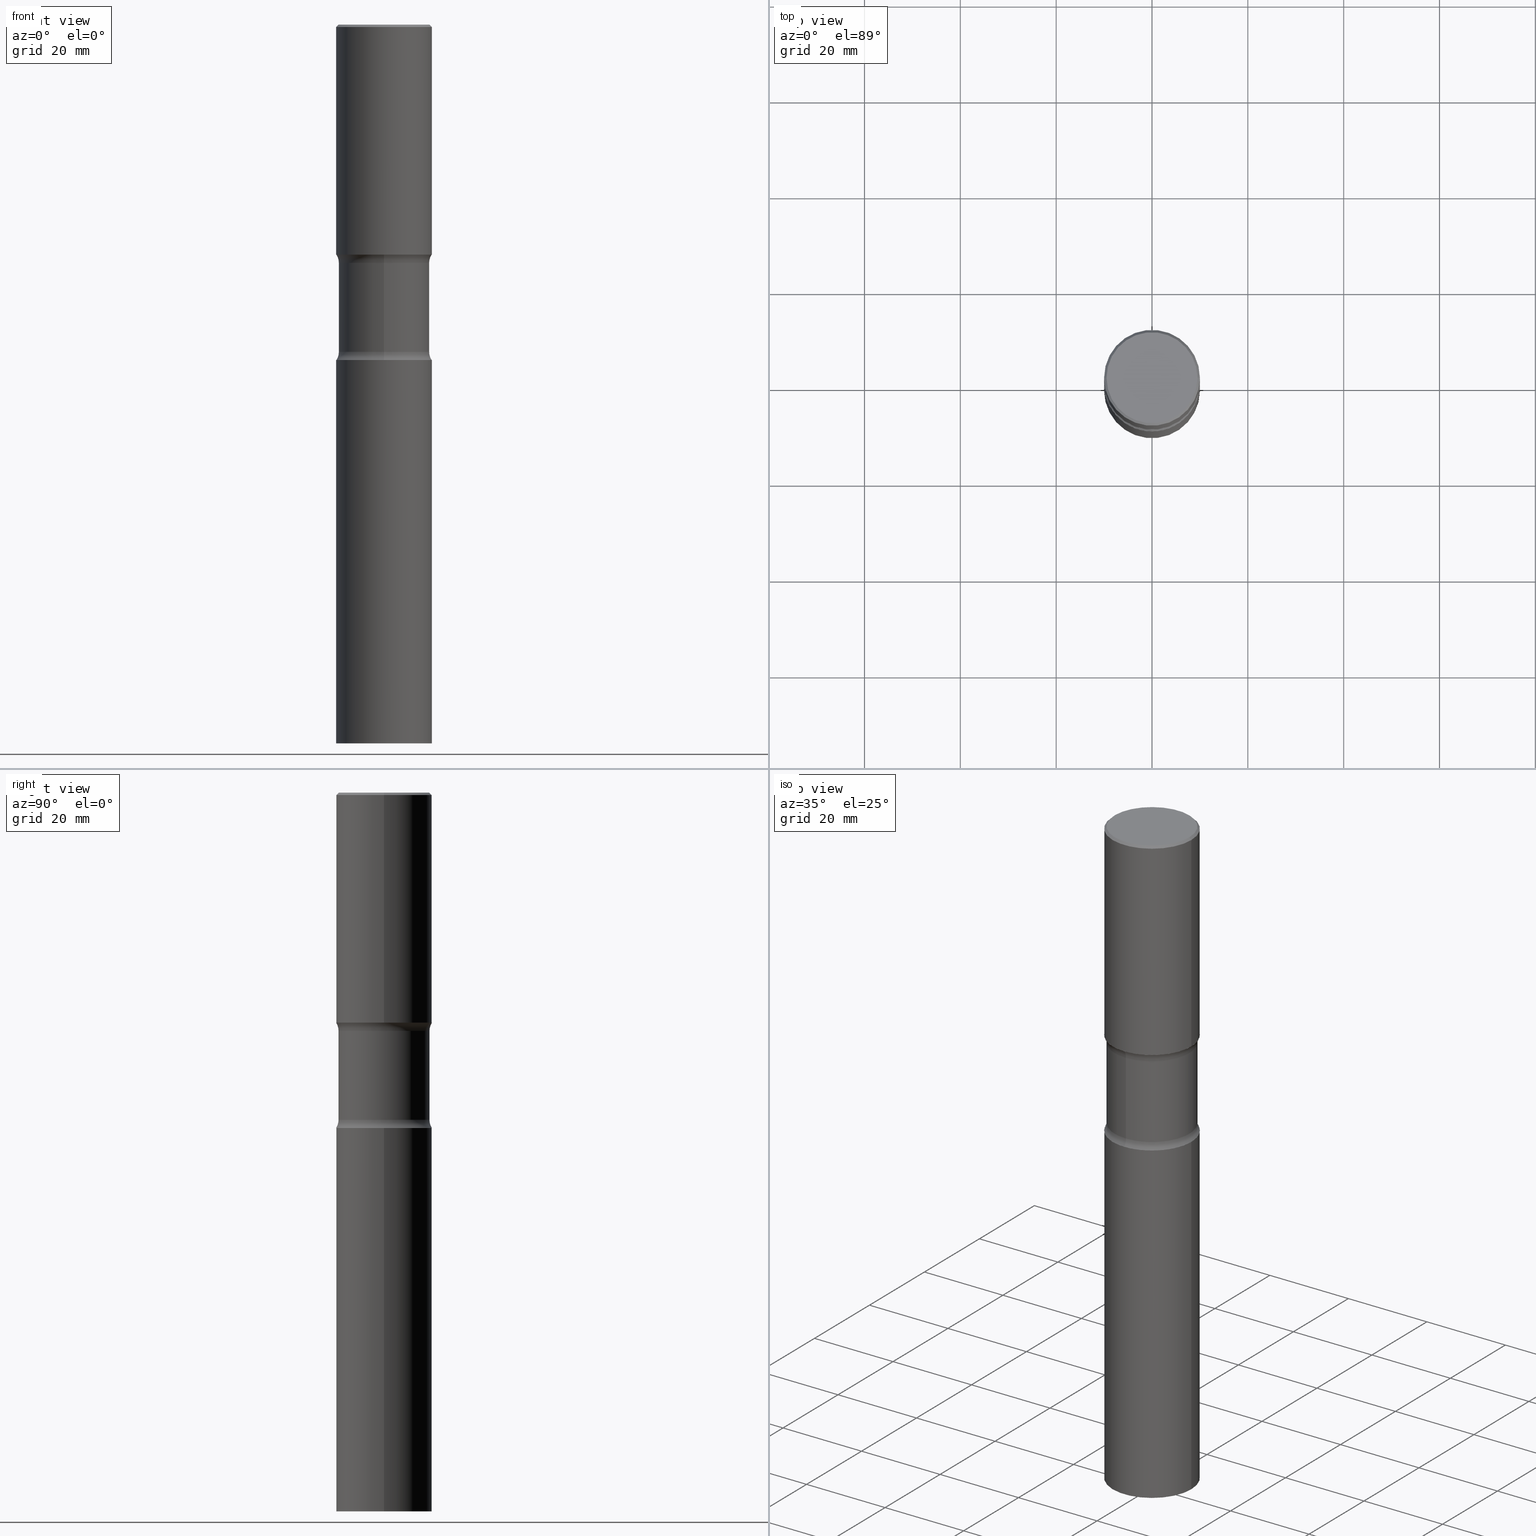
[diagram: canonical four-view strip — front | top / right | iso, engineering-drawing reading convention]
A machine part, canonical four-view strip (front | top / right | iso — engineering-drawing reading convention). The complete STEP part file that produces these views, byte-faithful:
ISO-10303-21;
HEADER;
FILE_DESCRIPTION (( 'STEP AP203' ),
    '1' );
FILE_NAME ('44637.STEP',
    '2024-03-11T13:38:57',
    ( '' ),
    ( '' ),
    'SwSTEP 2.0',
    'SolidWorks 2023',
    '' );
FILE_SCHEMA (( 'CONFIG_CONTROL_DESIGN' ));
ENDSEC;

DATA;
#1 = AXIS2_PLACEMENT_3D ( 'NONE', #354, #391, #389 ) ;
#2 = CYLINDRICAL_SURFACE ( 'NONE', #32, 0.3735000000000001097 ) ;
#3 = ORIENTED_EDGE ( 'NONE', *, *, #414, .F. ) ;
#4 = CARTESIAN_POINT ( 'NONE',  ( 2.608136560115867538E-15, 0.3734999999999931153, -1.957931930840099755 ) ) ;
#5 = ORIENTED_EDGE ( 'NONE', *, *, #360, .T. ) ;
#6 = FACE_OUTER_BOUND ( 'NONE', #463, .T. ) ;
#7 = TOROIDAL_SURFACE ( 'NONE', #404, 0.4984999999999999987, 0.1250000000000000000 ) ;
#8 = CIRCLE ( 'NONE', #274, 0.1249999999999999029 ) ;
#9 = PRODUCT ( '44637', '44637', '', ( #58 ) ) ;
#10 = DIRECTION ( 'NONE',  ( 2.490894556869833898E-29, -3.426429078389494425E-15, -1.000000000000000000 ) ) ;
#11 = APPLICATION_CONTEXT ( 'configuration controlled 3d designs of mechanical parts and assemblies' ) ;
#12 = DATE_AND_TIME ( #366, #208 ) ;
#13 = DIRECTION ( 'NONE',  ( 1.000000000000000000, -6.860497997771530774E-15, 4.841595540049562041E-29 ) ) ;
#14 = ADVANCED_FACE ( 'NONE', ( #152 ), #238, .T. ) ;
#15 = ORIENTED_EDGE ( 'NONE', *, *, #118, .F. ) ;
#16 = CARTESIAN_POINT ( 'NONE',  ( 0.3936999999999999389, -2.749192406205082822E-15, 1.919750796630859611E-29 ) ) ;
#17 = EDGE_LOOP ( 'NONE', ( #371, #189, #438, #336 ) ) ;
#18 = COORDINATED_UNIVERSAL_TIME_OFFSET ( 5, 0, .BEHIND. ) ;
#19 = CIRCLE ( 'NONE', #187, 0.3735000000000002207 ) ;
#20 = CARTESIAN_POINT ( 'NONE',  ( -2.700978061722584594E-15, -0.3937000000000096533, -2.755899999999997796 ) ) ;
#21 = ORIENTED_EDGE ( 'NONE', *, *, #471, .T. ) ;
#22 = ADVANCED_FACE ( 'NONE', ( #260 ), #388, .F. ) ;
#23 = ADVANCED_FACE ( 'NONE', ( #495 ), #7, .F. ) ;
#24 = ORIENTED_EDGE ( 'NONE', *, *, #436, .F. ) ;
#25 = PERSON_AND_ORGANIZATION ( #271, #163 ) ;
#26 = ORIENTED_EDGE ( 'NONE', *, *, #254, .F. ) ;
#27 = CARTESIAN_POINT ( 'NONE',  ( 6.739467482965615990E-29, -9.622173421717821235E-15, -2.755899999999998684 ) ) ;
#28 = EDGE_CURVE ( 'NONE', #319, #279, #293, .T. ) ;
#29 = DIMENSIONAL_EXPONENTS ( 1.000000000000000000, 0.000000000000000000, 0.000000000000000000, 0.000000000000000000, 0.000000000000000000, 0.000000000000000000, 0.000000000000000000 ) ;
#30 = APPROVAL ( #71, 'UNSPECIFIED' ) ;
#31 = EDGE_CURVE ( 'NONE', #343, #201, #218, .T. ) ;
#32 = AXIS2_PLACEMENT_3D ( 'NONE', #395, #255, #470 ) ;
#33 = DIRECTION ( 'NONE',  ( -2.438088387897960049E-29, 3.491481338843145188E-15, 1.000000000000000000 ) ) ;
#34 = CC_DESIGN_APPROVAL ( #267, ( #483 ) ) ;
#35 = DIRECTION ( 'NONE',  ( 6.982962677686265922E-15, 1.000000000000000000, -3.426429078389494425E-15 ) ) ;
#36 = ORIENTED_EDGE ( 'NONE', *, *, #230, .F. ) ;
#37 = DIRECTION ( 'NONE',  ( 6.982962677686265133E-15, 1.000000000000000000, -3.469453890861395179E-15 ) ) ;
#38 = CYLINDRICAL_SURFACE ( 'NONE', #53, 0.3936999999999999389 ) ;
#39 = CONICAL_SURFACE ( 'NONE', #419, 0.3936999999999998834, 0.7853981633974473908 ) ;
#40 = AXIS2_PLACEMENT_3D ( 'NONE', #297, #10, #92 ) ;
#41 = VECTOR ( 'NONE', #103, 39.37007874015748143 ) ;
#42 = DIRECTION ( 'NONE',  ( 6.982962677686264344E-15, 1.000000000000000000, -2.925673888797067346E-15 ) ) ;
#43 = APPLICATION_CONTEXT ( 'configuration controlled 3d designs of mechanical parts and assemblies' ) ;
#44 = DIRECTION ( 'NONE',  ( -2.445468806185136597E-29, 3.491481338843145583E-15, 1.000000000000000000 ) ) ;
#45 = EDGE_LOOP ( 'NONE', ( #172, #275, #5, #429 ) ) ;
#46 = CARTESIAN_POINT ( 'NONE',  ( 4.890937612370294178E-31, -6.982962677686321191E-17, -0.02000000000000008715 ) ) ;
#47 = CIRCLE ( 'NONE', #1, 0.3937000000000000499 ) ;
#48 = CARTESIAN_POINT ( 'NONE',  ( -2.087702828670439639E-46, 2.980686340760894400E-32, 8.537024980200822558E-18 ) ) ;
#49 = EDGE_CURVE ( 'NONE', #264, #479, #98, .T. ) ;
#50 = DIRECTION ( 'NONE',  ( -2.445468806185136597E-29, 3.491481338843145583E-15, 1.000000000000000000 ) ) ;
#51 = VERTEX_POINT ( 'NONE', #94 ) ;
#52 =( LENGTH_UNIT ( ) NAMED_UNIT ( * ) SI_UNIT ( $, .METRE. ) );
#53 = AXIS2_PLACEMENT_3D ( 'NONE', #116, #190, #160 ) ;
#54 = DATE_TIME_ROLE ( 'classification_date' ) ;
#55 = AXIS2_PLACEMENT_3D ( 'NONE', #334, #56, #139 ) ;
#56 = DIRECTION ( 'NONE',  ( -2.445468806185136597E-29, 3.491481338843145583E-15, 1.000000000000000000 ) ) ;
#57 = EDGE_CURVE ( 'NONE', #264, #381, #330, .T. ) ;
#58 = MECHANICAL_CONTEXT ( 'NONE', #11, 'mechanical' ) ;
#59 = DIRECTION ( 'NONE',  ( -2.490894556869833617E-29, 3.426429078389494425E-15, 1.000000000000000000 ) ) ;
#60 = VERTEX_POINT ( 'NONE', #20 ) ;
#61 = DATE_AND_TIME ( #368, #66 ) ;
#62 = EDGE_LOOP ( 'NONE', ( #90, #148 ) ) ;
#63 = DIRECTION ( 'NONE',  ( 2.490894556869833898E-29, -3.426429078389494425E-15, -1.000000000000000000 ) ) ;
#64 = PERSON_AND_ORGANIZATION_ROLE ( 'design_owner' ) ;
#65 = AXIS2_PLACEMENT_3D ( 'NONE', #106, #137, #278 ) ;
#66 = LOCAL_TIME ( 9, 38, 57.00000000000000000, #451 ) ;
#67 = ORIENTED_EDGE ( 'NONE', *, *, #462, .T. ) ;
#68 = DIRECTION ( 'NONE',  ( -6.982962677686265922E-15, -1.000000000000000000, 3.426429078389494425E-15 ) ) ;
#69 = EDGE_LOOP ( 'NONE', ( #266, #312 ) ) ;
#70 = ORIENTED_EDGE ( 'NONE', *, *, #340, .F. ) ;
#71 = APPROVAL_STATUS ( 'not_yet_approved' ) ;
#72 = DIRECTION ( 'NONE',  ( 2.438088387897960049E-29, -3.491481338843145188E-15, -1.000000000000000000 ) ) ;
#73 = AXIS2_PLACEMENT_3D ( 'NONE', #110, #149, #199 ) ;
#74 = CYLINDRICAL_SURFACE ( 'NONE', #306, 0.3937000000000000499 ) ;
#75 = VERTEX_POINT ( 'NONE', #453 ) ;
#76 = DIRECTION ( 'NONE',  ( 2.490894556869833898E-29, -3.426429078389494425E-15, -1.000000000000000000 ) ) ;
#77 = PLANE ( 'NONE',  #244 ) ;
#78 = DIRECTION ( 'NONE',  ( 1.000000000000000000, -6.860497997771530774E-15, 4.841595540049562041E-29 ) ) ;
#79 = AXIS2_PLACEMENT_3D ( 'NONE', #367, #59, #68 ) ;
#80 = TOROIDAL_SURFACE ( 'NONE', #364, 0.4984999999999999432, 0.1249999999999998612 ) ;
#81 = APPROVAL_PERSON_ORGANIZATION ( #276, #30, #228 ) ;
#82 = DIRECTION ( 'NONE',  ( -2.445468806185136597E-29, 3.491481338843145583E-15, 1.000000000000000000 ) ) ;
#83 = ADVANCED_FACE ( 'NONE', ( #446 ), #39, .T. ) ;
#84 = CARTESIAN_POINT ( 'NONE',  ( 0.3936999999999998834, -2.770807688499514550E-15, -0.02000000000000008715 ) ) ;
#85 = DIRECTION ( 'NONE',  ( 2.490894556869833898E-29, -3.426429078389494425E-15, -1.000000000000000000 ) ) ;
#86 = AXIS2_PLACEMENT_3D ( 'NONE', #285, #322, #120 ) ;
#87 = ORIENTED_EDGE ( 'NONE', *, *, #157, .T. ) ;
#88 = APPROVAL_PERSON_ORGANIZATION ( #269, #267, #372 ) ;
#89 = DIRECTION ( 'NONE',  ( -2.445468806185136877E-29, 3.491481338843145188E-15, 1.000000000000000000 ) ) ;
#90 = ORIENTED_EDGE ( 'NONE', *, *, #340, .T. ) ;
#91 = CC_DESIGN_PERSON_AND_ORGANIZATION_ASSIGNMENT ( #456, #407, ( #129 ) ) ;
#92 = DIRECTION ( 'NONE',  ( 6.982962677686265133E-15, 1.000000000000000000, -2.775563112689116301E-15 ) ) ;
#93 = APPLICATION_PROTOCOL_DEFINITION ( 'international standard', 'config_control_design', 1994, #43 ) ;
#94 = CARTESIAN_POINT ( 'NONE',  ( 2.749192406205129365E-15, 0.3936999999999933886, -1.889800000000001035 ) ) ;
#95 = DIRECTION ( 'NONE',  ( 6.982962677686265922E-15, 1.000000000000000000, -2.925673888797068135E-15 ) ) ;
#96 = CIRCLE ( 'NONE', #154, 0.3937000000000001054 ) ;
#97 = CC_DESIGN_SECURITY_CLASSIFICATION ( #129, ( #483 ) ) ;
#98 = LINE ( 'NONE', #223, #315 ) ;
#99 = DATE_AND_TIME ( #496, #198 ) ;
#100 = DIRECTION ( 'NONE',  ( 1.000000000000000000, -6.982962677686267499E-15, 0.000000000000000000 ) ) ;
#101 = APPLICATION_PROTOCOL_DEFINITION ( 'international standard', 'config_control_design', 1994, #11 ) ;
#102 = ORIENTED_EDGE ( 'NONE', *, *, #436, .T. ) ;
#103 = DIRECTION ( 'NONE',  ( -2.445468806185136877E-29, 3.491481338843145188E-15, 1.000000000000000000 ) ) ;
#104 = ORIENTED_EDGE ( 'NONE', *, *, #476, .F. ) ;
#105 =( CONVERSION_BASED_UNIT ( 'INCH', #213 ) LENGTH_UNIT ( ) NAMED_UNIT ( #29 ) );
#106 = CARTESIAN_POINT ( 'NONE',  ( 4.621446949928670868E-29, -6.598201434145776001E-15, -1.889799999999999924 ) ) ;
#107 = FACE_OUTER_BOUND ( 'NONE', #165, .T. ) ;
#108 = EDGE_CURVE ( 'NONE', #268, #465, #171, .T. ) ;
#109 = ORIENTED_EDGE ( 'NONE', *, *, #455, .T. ) ;
#110 = CARTESIAN_POINT ( 'NONE',  ( 5.537133175464039442E-29, -5.286886641555802542E-15, -1.889799999999999702 ) ) ;
#111 = EDGE_CURVE ( 'NONE', #140, #195, #211, .T. ) ;
#112 = CC_DESIGN_PERSON_AND_ORGANIZATION_ASSIGNMENT ( #489, #307, ( #241 ) ) ;
#113 = AXIS2_PLACEMENT_3D ( 'NONE', #475, #295, #124 ) ;
#114 = CARTESIAN_POINT ( 'NONE',  ( 1.458478897928284484E-28, -2.041405444701337464E-14, -5.905499999999999972 ) ) ;
#115 = CIRCLE ( 'NONE', #220, 0.3936999999999998834 ) ;
#116 = CARTESIAN_POINT ( 'NONE',  ( 0.000000000000000000, 0.000000000000000000, 0.000000000000000000 ) ) ;
#117 = EDGE_LOOP ( 'NONE', ( #424, #308, #415, #207 ) ) ;
#118 = EDGE_CURVE ( 'NONE', #396, #268, #490, .T. ) ;
#119 = EDGE_CURVE ( 'NONE', #264, #222, #144, .T. ) ;
#120 = DIRECTION ( 'NONE',  ( -6.982962677686269077E-15, -1.000000000000000000, 0.000000000000000000 ) ) ;
#121 = ORIENTED_EDGE ( 'NONE', *, *, #290, .T. ) ;
#122 = DIRECTION ( 'NONE',  ( -2.445468806185136597E-29, 3.491481338843145583E-15, 1.000000000000000000 ) ) ;
#123 = ADVANCED_FACE ( 'NONE', ( #416 ), #411, .F. ) ;
#124 = DIRECTION ( 'NONE',  ( 1.000000000000000000, -6.982962677686267499E-15, 0.000000000000000000 ) ) ;
#125 = CARTESIAN_POINT ( 'NONE',  ( 1.444171603492632270E-28, -2.061894304653819197E-14, -5.905499999999999972 ) ) ;
#126 = CARTESIAN_POINT ( 'NONE',  ( 4.890937612370294178E-31, -6.982962677686321191E-17, -0.02000000000000008715 ) ) ;
#127 = AXIS2_PLACEMENT_3D ( 'NONE', #433, #294, #164 ) ;
#128 = ORIENTED_EDGE ( 'NONE', *, *, #49, .F. ) ;
#129 = SECURITY_CLASSIFICATION ( '', '', #313 ) ;
#130 = CYLINDRICAL_SURFACE ( 'NONE', #188, 0.3936999999999999389 ) ;
#131 = COORDINATED_UNIVERSAL_TIME_OFFSET ( 5, 0, .BEHIND. ) ;
#132 = CARTESIAN_POINT ( 'NONE',  ( 0.3936999999999998834, -2.770807688499514550E-15, -0.02000000000000008715 ) ) ;
#133 = EDGE_CURVE ( 'NONE', #381, #264, #504, .T. ) ;
#134 = DIRECTION ( 'NONE',  ( 2.490894556869833898E-29, -3.426429078389494425E-15, -1.000000000000000000 ) ) ;
#135 = CIRCLE ( 'NONE', #127, 0.1249999999999999029 ) ;
#136 = ORIENTED_EDGE ( 'NONE', *, *, #133, .F. ) ;
#137 = DIRECTION ( 'NONE',  ( -2.445468806185136597E-29, 3.491481338843145583E-15, 1.000000000000000000 ) ) ;
#138 = DIRECTION ( 'NONE',  ( 1.000000000000000000, 0.000000000000000000, 0.000000000000000000 ) ) ;
#139 = DIRECTION ( 'NONE',  ( 1.000000000000000000, -6.982962677686266711E-15, 4.876212485538977921E-29 ) ) ;
#140 = VERTEX_POINT ( 'NONE', #383 ) ;
#141 = CARTESIAN_POINT ( 'NONE',  ( 0.000000000000000000, 0.000000000000000000, 0.000000000000000000 ) ) ;
#142 = CARTESIAN_POINT ( 'NONE',  ( 4.890937612370294178E-31, -6.982962677686321191E-17, -0.02000000000000008715 ) ) ;
#143 = CC_DESIGN_DATE_AND_TIME_ASSIGNMENT ( #183, #54, ( #129 ) ) ;
#144 = CIRCLE ( 'NONE', #243, 0.1249999999999999584 ) ;
#145 = AXIS2_PLACEMENT_3D ( 'NONE', #501, #428, #245 ) ;
#146 = LINE ( 'NONE', #317, #335 ) ;
#147 = AXIS2_PLACEMENT_3D ( 'NONE', #240, #385, #373 ) ;
#148 = ORIENTED_EDGE ( 'NONE', *, *, #476, .T. ) ;
#149 = DIRECTION ( 'NONE',  ( 2.490894556869833617E-29, -3.426429078389494425E-15, -1.000000000000000000 ) ) ;
#150 = ORIENTED_EDGE ( 'NONE', *, *, #397, .F. ) ;
#151 = CARTESIAN_POINT ( 'NONE',  ( 2.608136560115886865E-15, 0.3734999999999908393, -2.687768069159901074 ) ) ;
#152 = FACE_OUTER_BOUND ( 'NONE', #486, .T. ) ;
#153 = ORIENTED_EDGE ( 'NONE', *, *, #108, .F. ) ;
#154 = AXIS2_PLACEMENT_3D ( 'NONE', #321, #288, #37 ) ;
#155 = CARTESIAN_POINT ( 'NONE',  ( 6.739467482965615990E-29, -9.622173421717821235E-15, -2.755899999999998684 ) ) ;
#156 = AXIS2_PLACEMENT_3D ( 'NONE', #184, #175, #344 ) ;
#157 = EDGE_CURVE ( 'NONE', #201, #195, #115, .T. ) ;
#158 = CC_DESIGN_PERSON_AND_ORGANIZATION_ASSIGNMENT ( #310, #64, ( #9 ) ) ;
#159 = DIRECTION ( 'NONE',  ( 1.000000000000000000, -6.982962677686265922E-15, 4.876176775795935793E-29 ) ) ;
#160 = DIRECTION ( 'NONE',  ( 1.000000000000000000, -6.982962677686266711E-15, 4.876176775795935793E-29 ) ) ;
#161 = CARTESIAN_POINT ( 'NONE',  ( 4.740370480051120811E-29, -6.904378999094938868E-15, -1.957931930840098422 ) ) ;
#162 = AXIS2_PLACEMENT_3D ( 'NONE', #48, #122, #292 ) ;
#163 = ORGANIZATION ( 'UNSPECIFIED', 'UNSPECIFIED', '' ) ;
#164 = DIRECTION ( 'NONE',  ( -6.982962677686264344E-15, -1.000000000000000000, 0.000000000000000000 ) ) ;
#165 = EDGE_LOOP ( 'NONE', ( #109, #224, #150, #300 ) ) ;
#166 = EDGE_CURVE ( 'NONE', #140, #343, #298, .T. ) ;
#167 = ADVANCED_FACE ( 'NONE', ( #421 ), #80, .F. ) ;
#168 = FACE_OUTER_BOUND ( 'NONE', #117, .T. ) ;
#169 = CC_DESIGN_PERSON_AND_ORGANIZATION_ASSIGNMENT ( #301, #337, ( #483 ) ) ;
#170 = DIRECTION ( 'NONE',  ( 0.7071067811865469066, -7.319954787623254468E-15, -0.7071067811865481278 ) ) ;
#171 = CIRCLE ( 'NONE', #457, 0.3937000000000000499 ) ;
#172 = ORIENTED_EDGE ( 'NONE', *, *, #57, .F. ) ;
#173 = APPROVAL_STATUS ( 'not_yet_approved' ) ;
#174 = SHAPE_DEFINITION_REPRESENTATION ( #488, #250 ) ;
#175 = DIRECTION ( 'NONE',  ( 2.490894556869833898E-29, -3.426429078389494425E-15, -1.000000000000000000 ) ) ;
#176 = APPROVAL_STATUS ( 'not_yet_approved' ) ;
#177 = LINE ( 'NONE', #431, #316 ) ;
#178 = ORIENTED_EDGE ( 'NONE', *, *, #462, .F. ) ;
#179 = APPROVAL_DATE_TIME ( #378, #267 ) ;
#180 = DIRECTION ( 'NONE',  ( -2.445468806185136597E-29, 3.491481338843145583E-15, 1.000000000000000000 ) ) ;
#181 = VERTEX_POINT ( 'NONE', #498 ) ;
#182 = ORIENTED_EDGE ( 'NONE', *, *, #209, .T. ) ;
#183 = DATE_AND_TIME ( #444, #325 ) ;
#184 = CARTESIAN_POINT ( 'NONE',  ( 4.751813162939288428E-29, -6.887992425922019531E-15, -1.957931930840098422 ) ) ;
#185 = CARTESIAN_POINT ( 'NONE',  ( 6.572852971390990694E-29, -9.384292056610263617E-15, -2.687768069159900186 ) ) ;
#186 = EDGE_CURVE ( 'NONE', #381, #286, #146, .T. ) ;
#187 = AXIS2_PLACEMENT_3D ( 'NONE', #200, #85, #328 ) ;
#188 = AXIS2_PLACEMENT_3D ( 'NONE', #327, #44, #405 ) ;
#189 = ORIENTED_EDGE ( 'NONE', *, *, #49, .T. ) ;
#190 = DIRECTION ( 'NONE',  ( -2.445468806185136597E-29, 3.491481338843145583E-15, 1.000000000000000000 ) ) ;
#191 = EDGE_LOOP ( 'NONE', ( #358, #270 ) ) ;
#192 = PLANE ( 'NONE',  #145 ) ;
#193 = ORIENTED_EDGE ( 'NONE', *, *, #209, .F. ) ;
#194 = DIRECTION ( 'NONE',  ( -1.000000000000000000, 6.982962677686265922E-15, -4.876176775795935793E-29 ) ) ;
#195 = VERTEX_POINT ( 'NONE', #132 ) ;
#196 = CIRCLE ( 'NONE', #259, 0.3735000000000002207 ) ;
#197 = CARTESIAN_POINT ( 'NONE',  ( 6.572852971390990694E-29, -9.384292056610263617E-15, -2.687768069159900186 ) ) ;
#198 = LOCAL_TIME ( 9, 38, 57.00000000000000000, #382 ) ;
#199 = DIRECTION ( 'NONE',  ( 6.982962677686265922E-15, 1.000000000000000000, -3.426429078389494425E-15 ) ) ;
#200 = CARTESIAN_POINT ( 'NONE',  ( 6.569758027286980545E-29, -9.388724192720483938E-15, -2.687768069159900186 ) ) ;
#201 = VERTEX_POINT ( 'NONE', #370 ) ;
#202 = CARTESIAN_POINT ( 'NONE',  ( 4.582103707260653543E-29, -6.654543196924682234E-15, -1.889799999999999702 ) ) ;
#203 = AXIS2_PLACEMENT_3D ( 'NONE', #161, #480, #357 ) ;
#204 = LINE ( 'NONE', #439, #503 ) ;
#205 = DIRECTION ( 'NONE',  ( 2.490894556869833898E-29, -3.426429078389494425E-15, -1.000000000000000000 ) ) ;
#206 = ORIENTED_EDGE ( 'NONE', *, *, #247, .F. ) ;
#207 = ORIENTED_EDGE ( 'NONE', *, *, #111, .F. ) ;
#208 = LOCAL_TIME ( 9, 38, 57.00000000000000000, #210 ) ;
#209 = EDGE_CURVE ( 'NONE', #319, #201, #177, .T. ) ;
#210 = COORDINATED_UNIVERSAL_TIME_OFFSET ( 5, 0, .BEHIND. ) ;
#211 = LINE ( 'NONE', #16, #41 ) ;
#212 = ADVANCED_FACE ( 'NONE', ( #291 ), #500, .F. ) ;
#213 = LENGTH_MEASURE_WITH_UNIT ( LENGTH_MEASURE( 0.02539999999999999897 ), #52 );
#214 = EDGE_LOOP ( 'NONE', ( #231, #426 ) ) ;
#215 = DIRECTION ( 'NONE',  ( 2.490894556869833898E-29, -3.426429078389494425E-15, -1.000000000000000000 ) ) ;
#216 = ORIENTED_EDGE ( 'NONE', *, *, #447, .T. ) ;
#217 = ORIENTED_EDGE ( 'NONE', *, *, #254, .T. ) ;
#218 = LINE ( 'NONE', #311, #347 ) ;
#219 = CIRCLE ( 'NONE', #40, 0.3937000000000000499 ) ;
#220 = AXIS2_PLACEMENT_3D ( 'NONE', #142, #314, #458 ) ;
#221 = DATE_TIME_ROLE ( 'creation_date' ) ;
#222 = VERTEX_POINT ( 'NONE', #502 ) ;
#223 = CARTESIAN_POINT ( 'NONE',  ( -2.562396002167521472E-15, -0.3735000000000205378, -5.905499999999998195 ) ) ;
#224 = ORIENTED_EDGE ( 'NONE', *, *, #118, .T. ) ;
#225 = ADVANCED_FACE ( 'NONE', ( #384 ), #77, .F. ) ;
#226 = ORIENTED_EDGE ( 'NONE', *, *, #365, .F. ) ;
#227 = ORIENTED_EDGE ( 'NONE', *, *, #230, .T. ) ;
#228 = APPROVAL_ROLE ( '' ) ;
#229 = DIRECTION ( 'NONE',  ( -1.000000000000000000, 6.982962677686266711E-15, 0.000000000000000000 ) ) ;
#230 = EDGE_CURVE ( 'NONE', #51, #222, #96, .T. ) ;
#231 = ORIENTED_EDGE ( 'NONE', *, *, #455, .F. ) ;
#232 = CARTESIAN_POINT ( 'NONE',  ( 6.739467482965615990E-29, -9.622173421717821235E-15, -2.755899999999998684 ) ) ;
#233 = AXIS2_PLACEMENT_3D ( 'NONE', #155, #72, #194 ) ;
#234 = CYLINDRICAL_SURFACE ( 'NONE', #472, 0.3937000000000000499 ) ;
#235 = MANIFOLD_SOLID_BREP ( 'Body-Move/Copy2[4]', #273 ) ;
#236 = ADVANCED_FACE ( 'NONE', ( #351 ), #318, .F. ) ;
#237 = DIRECTION ( 'NONE',  ( 1.000000000000000000, -6.982962677686265922E-15, 4.876176775795935793E-29 ) ) ;
#238 = CYLINDRICAL_SURFACE ( 'NONE', #331, 0.3735000000000001097 ) ;
#239 = MANIFOLD_SOLID_BREP ( 'Body-Move/Copy2[2]', #246 ) ;
#240 = CARTESIAN_POINT ( 'NONE',  ( 2.609533152651356226E-15, 0.3736999999999998101, -1.300498063835582617E-15 ) ) ;
#241 = PRODUCT_DEFINITION ( 'UNKNOWN', '', #483, #302 ) ;
#242 = DIRECTION ( 'NONE',  ( 1.000000000000000000, -6.982962677686265922E-15, 4.876176775795935793E-29 ) ) ;
#243 = AXIS2_PLACEMENT_3D ( 'NONE', #338, #13, #380 ) ;
#244 = AXIS2_PLACEMENT_3D ( 'NONE', #468, #33, #242 ) ;
#245 = DIRECTION ( 'NONE',  ( -1.000000000000000000, 6.982962677686265922E-15, -4.876176775795935793E-29 ) ) ;
#246 = CLOSED_SHELL ( 'NONE', ( #422, #481, #83, #22, #225, #261 ) ) ;
#247 = EDGE_CURVE ( 'NONE', #60, #479, #8, .T. ) ;
#248 = CARTESIAN_POINT ( 'NONE',  ( -0.3937000000000000499, -5.366087797738052578E-16, -1.889799999999999924 ) ) ;
#249 = DIRECTION ( 'NONE',  ( 1.000000000000000000, -6.982962677686267499E-15, 0.000000000000000000 ) ) ;
#250 = ADVANCED_BREP_SHAPE_REPRESENTATION ( '44637', ( #398, #239, #235, #459 ), #392 ) ;
#251 = DIRECTION ( 'NONE',  ( 2.445468806185136597E-29, -3.491481338843145583E-15, -1.000000000000000000 ) ) ;
#252 = CIRCLE ( 'NONE', #499, 0.3937000000000000499 ) ;
#253 = EDGE_LOOP ( 'NONE', ( #477, #26 ) ) ;
#254 = EDGE_CURVE ( 'NONE', #343, #140, #47, .T. ) ;
#255 = DIRECTION ( 'NONE',  ( 2.490894556869833898E-29, -3.426429078389494425E-15, -1.000000000000000000 ) ) ;
#256 = ORIENTED_EDGE ( 'NONE', *, *, #157, .F. ) ;
#257 = PERSON_AND_ORGANIZATION ( #271, #163 ) ;
#258 = DIRECTION ( 'NONE',  ( 2.490894556869833898E-29, -3.426429078389494425E-15, -1.000000000000000000 ) ) ;
#259 = AXIS2_PLACEMENT_3D ( 'NONE', #394, #76, #42 ) ;
#260 = FACE_OUTER_BOUND ( 'NONE', #69, .T. ) ;
#261 = ADVANCED_FACE ( 'NONE', ( #282 ), #38, .T. ) ;
#262 = APPROVAL_DATE_TIME ( #12, #30 ) ;
#263 = DIRECTION ( 'NONE',  ( 2.445468806185136597E-29, -3.491481338843145583E-15, -1.000000000000000000 ) ) ;
#264 = VERTEX_POINT ( 'NONE', #506 ) ;
#265 = CARTESIAN_POINT ( 'NONE',  ( 4.751813162939288428E-29, -6.887992425922019531E-15, -1.957931930840098422 ) ) ;
#266 = ORIENTED_EDGE ( 'NONE', *, *, #28, .T. ) ;
#267 = APPROVAL ( #173, 'UNSPECIFIED' ) ;
#268 = VERTEX_POINT ( 'NONE', #349 ) ;
#269 = PERSON_AND_ORGANIZATION ( #271, #163 ) ;
#270 = ORIENTED_EDGE ( 'NONE', *, *, #108, .T. ) ;
#271 = PERSON ( 'UNSPECIFIED', 'UNSPECIFIED', 'UNSPECIFIED', ('UNSPECIFIED'), ('UNSPECIFIED'), ('UNSPECIFIED') ) ;
#272 = CARTESIAN_POINT ( 'NONE',  ( -0.3937000000000000499, 2.797406750687514786E-15, -1.936584745033356735E-29 ) ) ;
#273 = CLOSED_SHELL ( 'NONE', ( #348, #167, #23, #434, #212, #123, #281, #14 ) ) ;
#274 = AXIS2_PLACEMENT_3D ( 'NONE', #464, #78, #423 ) ;
#275 = ORIENTED_EDGE ( 'NONE', *, *, #119, .T. ) ;
#276 = PERSON_AND_ORGANIZATION ( #271, #163 ) ;
#277 = ORIENTED_EDGE ( 'NONE', *, *, #28, .F. ) ;
#278 = DIRECTION ( 'NONE',  ( 1.000000000000000000, -6.982962677686265133E-15, 0.000000000000000000 ) ) ;
#279 = VERTEX_POINT ( 'NONE', #469 ) ;
#280 = DIRECTION ( 'NONE',  ( -0.7071067811865469066, 2.468850131082250355E-15, -0.7071067811865481278 ) ) ;
#281 = ADVANCED_FACE ( 'NONE', ( #425 ), #408, .F. ) ;
#282 = FACE_OUTER_BOUND ( 'NONE', #454, .T. ) ;
#283 = ADVANCED_FACE ( 'NONE', ( #350 ), #192, .T. ) ;
#284 = CIRCLE ( 'NONE', #113, 0.3937000000000000499 ) ;
#285 = CARTESIAN_POINT ( 'NONE',  ( 3.481006894826651271E-15, 0.4984999999999931153, -1.957931930840099977 ) ) ;
#286 = VERTEX_POINT ( 'NONE', #151 ) ;
#287 = ADVANCED_FACE ( 'NONE', ( #320 ), #74, .T. ) ;
#288 = DIRECTION ( 'NONE',  ( 2.490894556869833898E-29, -3.426429078389494425E-15, -1.000000000000000000 ) ) ;
#289 = CC_DESIGN_PERSON_AND_ORGANIZATION_ASSIGNMENT ( #25, #442, ( #483 ) ) ;
#290 = EDGE_CURVE ( 'NONE', #381, #51, #432, .T. ) ;
#291 = FACE_OUTER_BOUND ( 'NONE', #369, .T. ) ;
#292 = DIRECTION ( 'NONE',  ( 1.000000000000000000, -6.982962677686266711E-15, 4.876212485538977921E-29 ) ) ;
#293 = CIRCLE ( 'NONE', #55, 0.3736999999999998101 ) ;
#294 = DIRECTION ( 'NONE',  ( -1.000000000000000000, 6.982962677686265922E-15, -4.883557194083112340E-29 ) ) ;
#295 = DIRECTION ( 'NONE',  ( -2.445468806185136597E-29, 3.491481338843145583E-15, 1.000000000000000000 ) ) ;
#296 = EDGE_CURVE ( 'NONE', #286, #479, #196, .T. ) ;
#297 = CARTESIAN_POINT ( 'NONE',  ( 6.739467482965615990E-29, -9.622173421717821235E-15, -2.755899999999998684 ) ) ;
#298 = CIRCLE ( 'NONE', #65, 0.3937000000000000499 ) ;
#299 = FACE_OUTER_BOUND ( 'NONE', #487, .T. ) ;
#300 = ORIENTED_EDGE ( 'NONE', *, *, #507, .F. ) ;
#301 = PERSON_AND_ORGANIZATION ( #271, #163 ) ;
#302 = DESIGN_CONTEXT ( 'detailed design', #43, 'design' ) ;
#303 = CALENDAR_DATE ( 2024, 11, 3 ) ;
#304 = DIRECTION ( 'NONE',  ( 6.982962677686265922E-15, 1.000000000000000000, -3.426429078389494425E-15 ) ) ;
#305 = APPROVAL ( #176, 'UNSPECIFIED' ) ;
#306 = AXIS2_PLACEMENT_3D ( 'NONE', #461, #430, #159 ) ;
#307 = PERSON_AND_ORGANIZATION_ROLE ( 'creator' ) ;
#308 = ORIENTED_EDGE ( 'NONE', *, *, #31, .T. ) ;
#309 = DIRECTION ( 'NONE',  ( 2.490894556869833898E-29, -3.426429078389494425E-15, -1.000000000000000000 ) ) ;
#310 = PERSON_AND_ORGANIZATION ( #271, #163 ) ;
#311 = CARTESIAN_POINT ( 'NONE',  ( -0.3936999999999999389, 2.797406750687513998E-15, -1.936584745033356455E-29 ) ) ;
#312 = ORIENTED_EDGE ( 'NONE', *, *, #365, .T. ) ;
#313 = SECURITY_CLASSIFICATION_LEVEL ( 'unclassified' ) ;
#314 = DIRECTION ( 'NONE',  ( -2.445468806185136597E-29, 3.491481338843145583E-15, 1.000000000000000000 ) ) ;
#315 = VECTOR ( 'NONE', #258, 39.37007874015748143 ) ;
#316 = VECTOR ( 'NONE', #280, 39.37007874015748143 ) ;
#317 = CARTESIAN_POINT ( 'NONE',  ( 2.608136560115966934E-15, 0.3734999999999796816, -5.905500000000000860 ) ) ;
#318 = PLANE ( 'NONE',  #233 ) ;
#319 = VERTEX_POINT ( 'NONE', #356 ) ;
#320 = FACE_OUTER_BOUND ( 'NONE', #449, .T. ) ;
#321 = CARTESIAN_POINT ( 'NONE',  ( 4.582103707260653543E-29, -6.654543196924682234E-15, -1.889799999999999702 ) ) ;
#322 = DIRECTION ( 'NONE',  ( -1.000000000000000000, 6.982962677686265922E-15, -4.883557194083112340E-29 ) ) ;
#323 = FACE_OUTER_BOUND ( 'NONE', #17, .T. ) ;
#324 = CIRCLE ( 'NONE', #386, 0.3937000000000001054 ) ;
#325 = LOCAL_TIME ( 9, 38, 57.00000000000000000, #131 ) ;
#326 = CARTESIAN_POINT ( 'NONE',  ( 0.3937000000000000499, -1.237136582792290445E-14, -2.755899999999998684 ) ) ;
#327 = CARTESIAN_POINT ( 'NONE',  ( 0.000000000000000000, 0.000000000000000000, 0.000000000000000000 ) ) ;
#328 = DIRECTION ( 'NONE',  ( 6.982962677686264344E-15, 1.000000000000000000, -2.925673888797067346E-15 ) ) ;
#329 = DIRECTION ( 'NONE',  ( 1.000000000000000000, -6.982962677686267499E-15, 0.000000000000000000 ) ) ;
#330 = CIRCLE ( 'NONE', #485, 0.3734999999999999987 ) ;
#331 = AXIS2_PLACEMENT_3D ( 'NONE', #114, #134, #95 ) ;
#332 =( NAMED_UNIT ( * ) SI_UNIT ( $, .STERADIAN. ) SOLID_ANGLE_UNIT ( ) );
#333 = DIRECTION ( 'NONE',  ( 2.490894556869833898E-29, -3.426429078389494425E-15, -1.000000000000000000 ) ) ;
#334 = CARTESIAN_POINT ( 'NONE',  ( -2.087702828670439639E-46, 2.980686340760894400E-32, 8.537024980200822558E-18 ) ) ;
#335 = VECTOR ( 'NONE', #333, 39.37007874015748143 ) ;
#336 = ORIENTED_EDGE ( 'NONE', *, *, #186, .F. ) ;
#337 = PERSON_AND_ORGANIZATION_ROLE ( 'creator' ) ;
#338 = CARTESIAN_POINT ( 'NONE',  ( -3.419958251889060736E-15, -0.4985000000000069376, -1.957931930840096868 ) ) ;
#339 = ADVANCED_FACE ( 'NONE', ( #107 ), #234, .T. ) ;
#340 = EDGE_CURVE ( 'NONE', #181, #60, #252, .T. ) ;
#341 = ORIENTED_EDGE ( 'NONE', *, *, #31, .F. ) ;
#342 = DIRECTION ( 'NONE',  ( 0.000000000000000000, 0.000000000000000000, 1.000000000000000000 ) ) ;
#343 = VERTEX_POINT ( 'NONE', #248 ) ;
#344 = DIRECTION ( 'NONE',  ( 6.982962677686265922E-15, 1.000000000000000000, -3.657092360996336056E-15 ) ) ;
#345 = DIRECTION ( 'NONE',  ( 6.982962677686265922E-15, 1.000000000000000000, -3.426429078389494425E-15 ) ) ;
#346 = AXIS2_PLACEMENT_3D ( 'NONE', #508, #82, #249 ) ;
#347 = VECTOR ( 'NONE', #413, 39.37007874015748143 ) ;
#348 = ADVANCED_FACE ( 'NONE', ( #323 ), #2, .T. ) ;
#349 = CARTESIAN_POINT ( 'NONE',  ( -0.3937000000000000499, -1.232315148344049260E-14, -2.755899999999998684 ) ) ;
#350 = FACE_OUTER_BOUND ( 'NONE', #214, .T. ) ;
#351 = FACE_OUTER_BOUND ( 'NONE', #191, .T. ) ;
#352 = LOCAL_TIME ( 9, 38, 57.00000000000000000, #18 ) ;
#353 = CLOSED_SHELL ( 'NONE', ( #339, #287, #236, #283 ) ) ;
#354 = CARTESIAN_POINT ( 'NONE',  ( 4.621446949928670868E-29, -6.598201434145776001E-15, -1.889799999999999924 ) ) ;
#355 = PRODUCT_RELATED_PRODUCT_CATEGORY ( 'detail', '', ( #9 ) ) ;
#356 = CARTESIAN_POINT ( 'NONE',  ( -0.3736999999999998101, 2.644447966039787875E-15, 8.537024980182450727E-18 ) ) ;
#357 = DIRECTION ( 'NONE',  ( 6.982962677686265922E-15, 1.000000000000000000, -3.426429078389494425E-15 ) ) ;
#358 = ORIENTED_EDGE ( 'NONE', *, *, #397, .T. ) ;
#359 = AXIS2_PLACEMENT_3D ( 'NONE', #125, #50, #329 ) ;
#360 = EDGE_CURVE ( 'NONE', #222, #51, #324, .T. ) ;
#361 = DIRECTION ( 'NONE',  ( 6.982962677686265133E-15, 1.000000000000000000, -3.469453890861395179E-15 ) ) ;
#362 = DIRECTION ( 'NONE',  ( 6.982962677686265133E-15, 1.000000000000000000, -2.775563112689116301E-15 ) ) ;
#363 = CARTESIAN_POINT ( 'NONE',  ( -0.3937000000000000499, -1.232315148344049260E-14, -5.905499999999999972 ) ) ;
#364 = AXIS2_PLACEMENT_3D ( 'NONE', #185, #215, #345 ) ;
#365 = EDGE_CURVE ( 'NONE', #279, #319, #375, .T. ) ;
#366 = CALENDAR_DATE ( 2024, 11, 3 ) ;
#367 = CARTESIAN_POINT ( 'NONE',  ( 6.739467482965615990E-29, -9.622173421717821235E-15, -2.755899999999998684 ) ) ;
#368 = CALENDAR_DATE ( 2024, 11, 3 ) ;
#369 = EDGE_LOOP ( 'NONE', ( #36, #393 ) ) ;
#370 = CARTESIAN_POINT ( 'NONE',  ( -0.3936999999999998834, 2.679362779428219130E-15, -0.02000000000000008715 ) ) ;
#371 = ORIENTED_EDGE ( 'NONE', *, *, #133, .T. ) ;
#372 = APPROVAL_ROLE ( '' ) ;
#373 = DIRECTION ( 'NONE',  ( -1.000000000000000000, 6.982962677686265922E-15, -4.876176775795935793E-29 ) ) ;
#374 = ORIENTED_EDGE ( 'NONE', *, *, #119, .F. ) ;
#375 = CIRCLE ( 'NONE', #162, 0.3736999999999998101 ) ;
#376 = CC_DESIGN_APPROVAL ( #30, ( #129 ) ) ;
#377 = VECTOR ( 'NONE', #493, 39.37007874015748143 ) ;
#378 = DATE_AND_TIME ( #303, #352 ) ;
#379 = ORIENTED_EDGE ( 'NONE', *, *, #414, .T. ) ;
#380 = DIRECTION ( 'NONE',  ( 6.860497997771532351E-15, 1.000000000000000000, 0.000000000000000000 ) ) ;
#381 = VERTEX_POINT ( 'NONE', #4 ) ;
#382 = COORDINATED_UNIVERSAL_TIME_OFFSET ( 5, 0, .BEHIND. ) ;
#383 = CARTESIAN_POINT ( 'NONE',  ( 0.3937000000000000499, -9.347393840350860007E-15, -1.889799999999999924 ) ) ;
#384 = FACE_OUTER_BOUND ( 'NONE', #253, .T. ) ;
#385 = DIRECTION ( 'NONE',  ( 2.438088387897960049E-29, -3.491481338843145188E-15, -1.000000000000000000 ) ) ;
#386 = AXIS2_PLACEMENT_3D ( 'NONE', #202, #205, #361 ) ;
#387 = CARTESIAN_POINT ( 'NONE',  ( 0.000000000000000000, 0.000000000000000000, 0.000000000000000000 ) ) ;
#388 = PLANE ( 'NONE',  #147 ) ;
#389 = DIRECTION ( 'NONE',  ( 1.000000000000000000, -6.982962677686265133E-15, 0.000000000000000000 ) ) ;
#390 = ORIENTED_EDGE ( 'NONE', *, *, #507, .T. ) ;
#391 = DIRECTION ( 'NONE',  ( -2.445468806185136597E-29, 3.491481338843145583E-15, 1.000000000000000000 ) ) ;
#392 =( GEOMETRIC_REPRESENTATION_CONTEXT ( 3 ) GLOBAL_UNCERTAINTY_ASSIGNED_CONTEXT ( ( #406 ) ) GLOBAL_UNIT_ASSIGNED_CONTEXT ( ( #105, #410, #332 ) ) REPRESENTATION_CONTEXT ( 'NONE', 'WORKASPACE' ) );
#393 = ORIENTED_EDGE ( 'NONE', *, *, #360, .F. ) ;
#394 = CARTESIAN_POINT ( 'NONE',  ( 6.569758027286980545E-29, -9.388724192720483938E-15, -2.687768069159900186 ) ) ;
#395 = CARTESIAN_POINT ( 'NONE',  ( 1.458478897928284484E-28, -2.041405444701337464E-14, -5.905499999999999972 ) ) ;
#396 = VERTEX_POINT ( 'NONE', #363 ) ;
#397 = EDGE_CURVE ( 'NONE', #465, #268, #437, .T. ) ;
#398 = MANIFOLD_SOLID_BREP ( 'Body-Move/Copy2[1]', #353 ) ;
#399 = CARTESIAN_POINT ( 'NONE',  ( -2.631687031945093659E-15, -0.3735000000000095466, -2.687768069159898854 ) ) ;
#400 = CC_DESIGN_DATE_AND_TIME_ASSIGNMENT ( #61, #221, ( #241 ) ) ;
#401 = CONICAL_SURFACE ( 'NONE', #482, 0.3936999999999998834, 0.7853981633974473908 ) ;
#402 = CC_DESIGN_APPROVAL ( #305, ( #241 ) ) ;
#403 = DIRECTION ( 'NONE',  ( -1.000000000000000000, 6.982962677686266711E-15, 0.000000000000000000 ) ) ;
#404 = AXIS2_PLACEMENT_3D ( 'NONE', #409, #63, #304 ) ;
#405 = DIRECTION ( 'NONE',  ( 1.000000000000000000, -6.982962677686266711E-15, 4.876176775795935793E-29 ) ) ;
#406 = UNCERTAINTY_MEASURE_WITH_UNIT (LENGTH_MEASURE( 1.000000000000000082E-05 ), #105, 'distance_accuracy_value', 'NONE');
#407 = PERSON_AND_ORGANIZATION_ROLE ( 'classification_officer' ) ;
#408 = TOROIDAL_SURFACE ( 'NONE', #473, 0.4984999999999999432, 0.1249999999999998612 ) ;
#409 = CARTESIAN_POINT ( 'NONE',  ( 4.740370480051120811E-29, -6.904378999094938868E-15, -1.957931930840098422 ) ) ;
#410 =( NAMED_UNIT ( * ) PLANE_ANGLE_UNIT ( ) SI_UNIT ( $, .RADIAN. ) );
#411 = PLANE ( 'NONE',  #79 ) ;
#412 = EDGE_LOOP ( 'NONE', ( #206, #70, #379, #443 ) ) ;
#413 = DIRECTION ( 'NONE',  ( -2.445468806185136877E-29, 3.491481338843145188E-15, 1.000000000000000000 ) ) ;
#414 = EDGE_CURVE ( 'NONE', #181, #286, #135, .T. ) ;
#415 = ORIENTED_EDGE ( 'NONE', *, *, #447, .F. ) ;
#416 = FACE_OUTER_BOUND ( 'NONE', #62, .T. ) ;
#417 = ORIENTED_EDGE ( 'NONE', *, *, #186, .T. ) ;
#418 = AXIS2_PLACEMENT_3D ( 'NONE', #126, #441, #484 ) ;
#419 = AXIS2_PLACEMENT_3D ( 'NONE', #497, #263, #229 ) ;
#420 = EDGE_LOOP ( 'NONE', ( #104, #460, #102, #3 ) ) ;
#421 = FACE_OUTER_BOUND ( 'NONE', #420, .T. ) ;
#422 = ADVANCED_FACE ( 'NONE', ( #168 ), #130, .T. ) ;
#423 = DIRECTION ( 'NONE',  ( 6.860497997771527618E-15, 1.000000000000000000, 0.000000000000000000 ) ) ;
#424 = ORIENTED_EDGE ( 'NONE', *, *, #166, .T. ) ;
#425 = FACE_OUTER_BOUND ( 'NONE', #412, .T. ) ;
#426 = ORIENTED_EDGE ( 'NONE', *, *, #471, .F. ) ;
#427 = CIRCLE ( 'NONE', #418, 0.3936999999999998834 ) ;
#428 = DIRECTION ( 'NONE',  ( 2.438088387897960049E-29, -3.491481338843145188E-15, -1.000000000000000000 ) ) ;
#429 = ORIENTED_EDGE ( 'NONE', *, *, #290, .F. ) ;
#430 = DIRECTION ( 'NONE',  ( -2.445468806185136597E-29, 3.491481338843145583E-15, 1.000000000000000000 ) ) ;
#431 = CARTESIAN_POINT ( 'NONE',  ( -0.3936999999999998834, 2.679362779428219130E-15, -0.02000000000000008715 ) ) ;
#432 = CIRCLE ( 'NONE', #86, 0.1249999999999999584 ) ;
#433 = CARTESIAN_POINT ( 'NONE',  ( 3.481006894826669020E-15, 0.4984999999999906173, -2.687768069159901518 ) ) ;
#434 = ADVANCED_FACE ( 'NONE', ( #299 ), #467, .F. ) ;
#435 = DIRECTION ( 'NONE',  ( 2.490894556869833898E-29, -3.426429078389494425E-15, -1.000000000000000000 ) ) ;
#436 = EDGE_CURVE ( 'NONE', #479, #286, #19, .T. ) ;
#437 = CIRCLE ( 'NONE', #346, 0.3937000000000000499 ) ;
#438 = ORIENTED_EDGE ( 'NONE', *, *, #296, .F. ) ;
#439 = CARTESIAN_POINT ( 'NONE',  ( 0.3937000000000000499, -2.749192406205083217E-15, 1.919750796630860172E-29 ) ) ;
#440 = EDGE_LOOP ( 'NONE', ( #178, #277, #182, #87 ) ) ;
#441 = DIRECTION ( 'NONE',  ( -2.445468806185136597E-29, 3.491481338843145583E-15, 1.000000000000000000 ) ) ;
#442 = PERSON_AND_ORGANIZATION_ROLE ( 'design_supplier' ) ;
#443 = ORIENTED_EDGE ( 'NONE', *, *, #296, .T. ) ;
#444 = CALENDAR_DATE ( 2024, 11, 3 ) ;
#445 = CIRCLE ( 'NONE', #359, 0.3937000000000000499 ) ;
#446 = FACE_OUTER_BOUND ( 'NONE', #440, .T. ) ;
#447 = EDGE_CURVE ( 'NONE', #195, #201, #427, .T. ) ;
#448 = APPROVAL_DATE_TIME ( #99, #305 ) ;
#449 = EDGE_LOOP ( 'NONE', ( #15, #21, #390, #153 ) ) ;
#450 = DIRECTION ( 'NONE',  ( 6.982962677686265922E-15, 1.000000000000000000, -3.657092360996336056E-15 ) ) ;
#451 = COORDINATED_UNIVERSAL_TIME_OFFSET ( 5, 0, .BEHIND. ) ;
#452 = ORIENTED_EDGE ( 'NONE', *, *, #57, .T. ) ;
#453 = CARTESIAN_POINT ( 'NONE',  ( 0.3937000000000000499, -2.336813545274327834E-14, -5.905499999999999972 ) ) ;
#454 = EDGE_LOOP ( 'NONE', ( #341, #217, #492, #256 ) ) ;
#455 = EDGE_CURVE ( 'NONE', #75, #396, #445, .T. ) ;
#456 = PERSON_AND_ORGANIZATION ( #271, #163 ) ;
#457 = AXIS2_PLACEMENT_3D ( 'NONE', #27, #180, #100 ) ;
#458 = DIRECTION ( 'NONE',  ( 1.000000000000000000, -6.982962677686266711E-15, 0.000000000000000000 ) ) ;
#459 = AXIS2_PLACEMENT_3D ( 'NONE', #141, #342, #138 ) ;
#460 = ORIENTED_EDGE ( 'NONE', *, *, #247, .T. ) ;
#461 = CARTESIAN_POINT ( 'NONE',  ( 0.000000000000000000, 0.000000000000000000, 0.000000000000000000 ) ) ;
#462 = EDGE_CURVE ( 'NONE', #279, #195, #478, .T. ) ;
#463 = EDGE_LOOP ( 'NONE', ( #226, #67, #216, #193 ) ) ;
#464 = CARTESIAN_POINT ( 'NONE',  ( -3.419958251889042197E-15, -0.4985000000000093245, -2.687768069159898410 ) ) ;
#465 = VERTEX_POINT ( 'NONE', #326 ) ;
#466 = DIRECTION ( 'NONE',  ( -2.445468806185136597E-29, 3.491481338843145583E-15, 1.000000000000000000 ) ) ;
#467 = TOROIDAL_SURFACE ( 'NONE', #203, 0.4984999999999999987, 0.1250000000000000000 ) ;
#468 = CARTESIAN_POINT ( 'NONE',  ( 4.621446949928670868E-29, -6.598201434145776001E-15, -1.889799999999999924 ) ) ;
#469 = CARTESIAN_POINT ( 'NONE',  ( 0.3736999999999998101, -2.667287895133367570E-15, 8.537024980219274507E-18 ) ) ;
#470 = DIRECTION ( 'NONE',  ( 6.982962677686265922E-15, 1.000000000000000000, -2.925673888797068135E-15 ) ) ;
#471 = EDGE_CURVE ( 'NONE', #396, #75, #284, .T. ) ;
#472 = AXIS2_PLACEMENT_3D ( 'NONE', #387, #466, #237 ) ;
#473 = AXIS2_PLACEMENT_3D ( 'NONE', #197, #505, #35 ) ;
#474 = APPROVAL_PERSON_ORGANIZATION ( #257, #305, #494 ) ;
#475 = CARTESIAN_POINT ( 'NONE',  ( 1.444171603492632270E-28, -2.061894304653819197E-14, -5.905499999999999972 ) ) ;
#476 = EDGE_CURVE ( 'NONE', #60, #181, #219, .T. ) ;
#477 = ORIENTED_EDGE ( 'NONE', *, *, #166, .F. ) ;
#478 = LINE ( 'NONE', #84, #491 ) ;
#479 = VERTEX_POINT ( 'NONE', #399 ) ;
#480 = DIRECTION ( 'NONE',  ( 2.490894556869833898E-29, -3.426429078389494425E-15, -1.000000000000000000 ) ) ;
#481 = ADVANCED_FACE ( 'NONE', ( #6 ), #401, .T. ) ;
#482 = AXIS2_PLACEMENT_3D ( 'NONE', #46, #251, #403 ) ;
#483 = PRODUCT_DEFINITION_FORMATION_WITH_SPECIFIED_SOURCE ( 'ANY', '', #9, .NOT_KNOWN. ) ;
#484 = DIRECTION ( 'NONE',  ( 1.000000000000000000, -6.982962677686266711E-15, 0.000000000000000000 ) ) ;
#485 = AXIS2_PLACEMENT_3D ( 'NONE', #265, #309, #450 ) ;
#486 = EDGE_LOOP ( 'NONE', ( #128, #452, #417, #24 ) ) ;
#487 = EDGE_LOOP ( 'NONE', ( #374, #136, #121, #227 ) ) ;
#488 = PRODUCT_DEFINITION_SHAPE ( 'NONE', 'NONE',  #241 ) ;
#489 = PERSON_AND_ORGANIZATION ( #271, #163 ) ;
#490 = LINE ( 'NONE', #272, #377 ) ;
#491 = VECTOR ( 'NONE', #170, 39.37007874015748143 ) ;
#492 = ORIENTED_EDGE ( 'NONE', *, *, #111, .T. ) ;
#493 = DIRECTION ( 'NONE',  ( -2.445468806185136877E-29, 3.491481338843145188E-15, 1.000000000000000000 ) ) ;
#494 = APPROVAL_ROLE ( '' ) ;
#495 = FACE_OUTER_BOUND ( 'NONE', #45, .T. ) ;
#496 = CALENDAR_DATE ( 2024, 11, 3 ) ;
#497 = CARTESIAN_POINT ( 'NONE',  ( 4.890937612370294178E-31, -6.982962677686321191E-17, -0.02000000000000008715 ) ) ;
#498 = CARTESIAN_POINT ( 'NONE',  ( 2.749192406205151059E-15, 0.3936999999999904465, -2.755900000000000016 ) ) ;
#499 = AXIS2_PLACEMENT_3D ( 'NONE', #232, #435, #362 ) ;
#500 = PLANE ( 'NONE',  #73 ) ;
#501 = CARTESIAN_POINT ( 'NONE',  ( 1.444171603492632270E-28, -2.061894304653819197E-14, -5.905499999999999972 ) ) ;
#502 = CARTESIAN_POINT ( 'NONE',  ( -2.700978061722606287E-15, -0.3937000000000067668, -1.889799999999998148 ) ) ;
#503 = VECTOR ( 'NONE', #89, 39.37007874015748143 ) ;
#504 = CIRCLE ( 'NONE', #156, 0.3734999999999999987 ) ;
#505 = DIRECTION ( 'NONE',  ( 2.490894556869833898E-29, -3.426429078389494425E-15, -1.000000000000000000 ) ) ;
#506 = CARTESIAN_POINT ( 'NONE',  ( -2.631687031945112592E-15, -0.3735000000000068821, -1.957931930840097090 ) ) ;
#507 = EDGE_CURVE ( 'NONE', #75, #465, #204, .T. ) ;
#508 = CARTESIAN_POINT ( 'NONE',  ( 6.739467482965615990E-29, -9.622173421717821235E-15, -2.755899999999998684 ) ) ;
ENDSEC;
END-ISO-10303-21;
